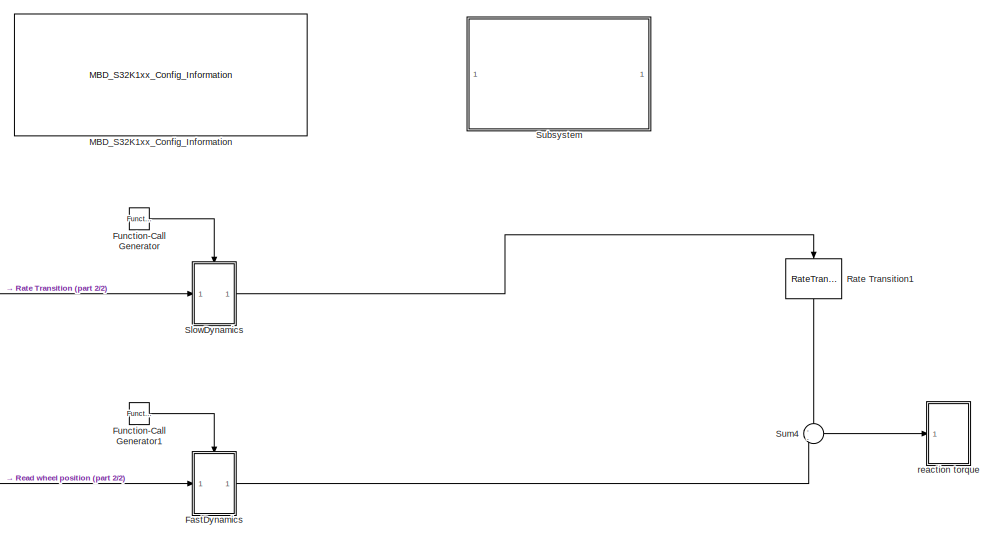
[diagram: root canvas - part 1/2, right side, full height]
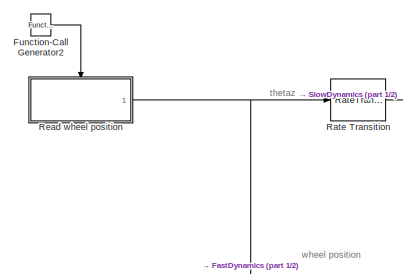
[diagram: root canvas - part 2/2, middle left region]
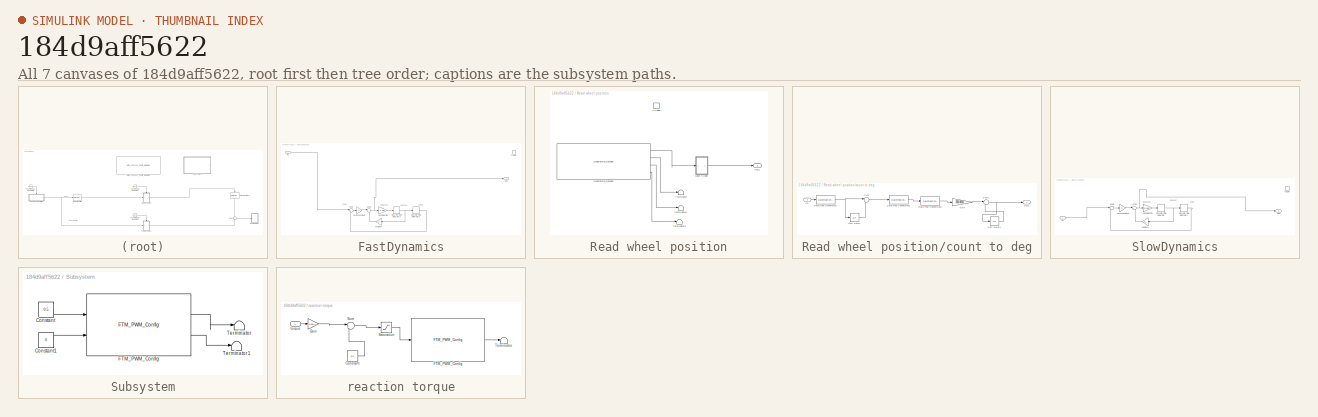
[diagram: thumbnail index - all 7 canvases of the model, root first then tree order]
MODEL slx_184d9aff5622
KIND model
CONFIG AbsTol = auto
CONFIG EnableMultiTasking = on
CONFIG FixedStep = .001
CONFIG InitFcn = mbd_s32k_consistency_checks(bdroot(gcs));
CONFIG MaxStep = auto
CONFIG MinStep = auto
CONFIG RelTol = 1e-3
CONFIG SampleTimeConstraint = Unconstrained
CONFIG Solver = FixedStepDiscrete
CONFIG SolverName = FixedStepDiscrete
CONFIG StartTime = 0.0
CONFIG StopTime = tfinal
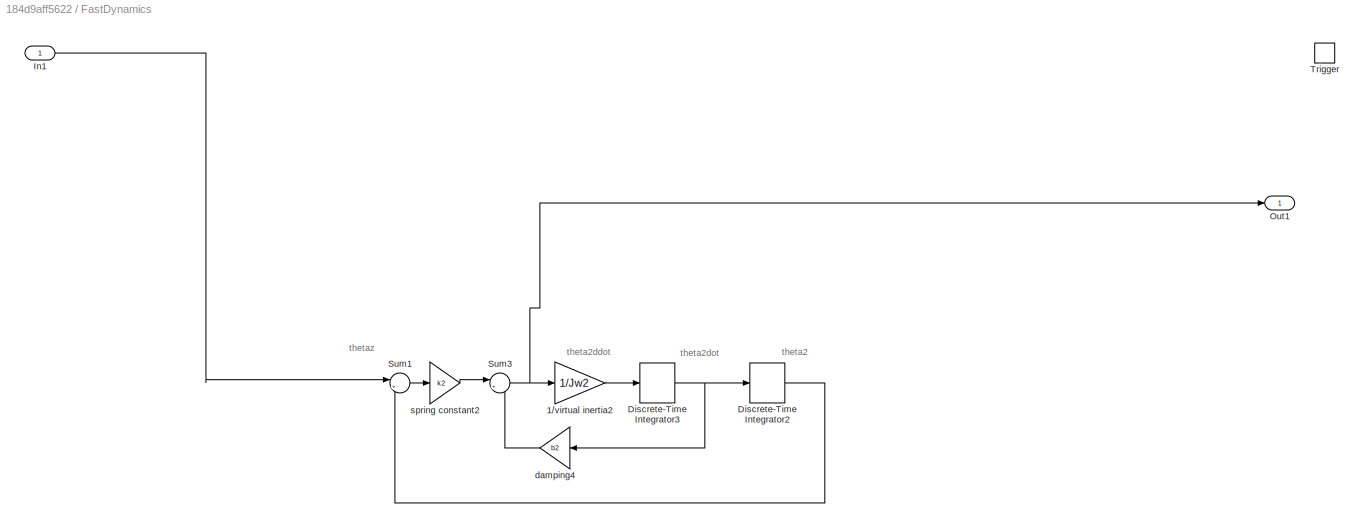
BLOCK [SubSystem] FastDynamics
  AttributesFormatString = %<TreatAsAtomicUnit>
  Ports = [1, 1, 0, 1]
  RTWFcnName = fast_dynamics
  RTWFcnNameOpts = User specified
  RTWFileNameOpts = Use function name
  RequestExecContextInheritance = off
  TreatAsAtomicUnit = on
BLOCK [Gain] FastDynamics/1//virtual inertia2
  Gain = 1/Jw2
  OutDataTypeStr = Inherit: Same as input
  ParamDataTypeStr = Inherit: Same as input
  SaturateOnIntegerOverflow = on
BLOCK [DiscreteIntegrator] FastDynamics/Discrete-Time Integrator2
  ICPrevOutput = DiscIntNeverNeededParam
  ICPrevScaledInput = DiscIntNeverNeededParam
  Ports = [1, 1]
  SampleTime = -1
BLOCK [DiscreteIntegrator] FastDynamics/Discrete-Time Integrator3
  ICPrevOutput = DiscIntNeverNeededParam
  ICPrevScaledInput = DiscIntNeverNeededParam
  Ports = [1, 1]
  SampleTime = -1
BLOCK [Inport] FastDynamics/In1
BLOCK [Outport] FastDynamics/Out1
BLOCK [Sum] FastDynamics/Sum1
  InputSameDT = on
  Inputs = |+-
  OutDataTypeStr = Inherit: Same as first input
  Ports = [2, 1]
  SaturateOnIntegerOverflow = on
BLOCK [Sum] FastDynamics/Sum3
  InputSameDT = on
  Inputs = |+-
  OutDataTypeStr = Inherit: Same as first input
  Ports = [2, 1]
  SaturateOnIntegerOverflow = on
BLOCK [TriggerPort] FastDynamics/Trigger
  PortDimensions = 1
  Ports = []
  StatesWhenEnabling = held
  TriggerType = function-call
  VariantControl = (inherit)
BLOCK [Gain] FastDynamics/damping4
  Gain = b2
  OutDataTypeStr = Inherit: Same as input
  ParamDataTypeStr = Inherit: Same as input
  SaturateOnIntegerOverflow = on
BLOCK [Gain] FastDynamics/spring constant2
  Gain = k2
  OutDataTypeStr = Inherit: Same as input
  ParamDataTypeStr = Inherit: Same as input
  SaturateOnIntegerOverflow = on
BLOCK [Reference] Function-Call Generator  REF=simulink/Ports &
Subsystems/Function-Call
Generator
  Ports = [0, 1]
  SourceBlock = simulink/Ports &\nSubsystems/Function-Call\nGenerator
  SourceProductBaseCode = SL
  SourceType = Function-Call Generator
BLOCK [Reference] Function-Call Generator1  REF=simulink/Ports &
Subsystems/Function-Call
Generator
  Ports = [0, 1]
  SourceBlock = simulink/Ports &\nSubsystems/Function-Call\nGenerator
  SourceProductBaseCode = SL
  SourceType = Function-Call Generator
BLOCK [Reference] Function-Call Generator2  REF=simulink/Ports &
Subsystems/Function-Call
Generator
  Ports = [0, 1]
  SourceBlock = simulink/Ports &\nSubsystems/Function-Call\nGenerator
  SourceProductBaseCode = SL
  SourceType = Function-Call Generator
BLOCK [Reference] MBD_S32K1xx_Config_Information  REF=mbd_s32k1xx_ec_toolbox/MBD_S32K1xx_Config_Information
  Ports = []
  SourceBlock = mbd_s32k1xx_ec_toolbox/MBD_S32K1xx_Config_Information
  SourceType = MBDTBX_EC_S32K
BLOCK [RateTransition] Rate Transition
BLOCK [RateTransition] Rate Transition1
  NameLocation = right
BLOCK [SubSystem] Read wheel position
  Ports = [0, 1, 0, 1]
  RequestExecContextInheritance = off
  TreatAsAtomicUnit = on
BLOCK [Outport] Read wheel position/Out1
BLOCK [Reference] Read wheel position/Quadrature_Decoder  REF=mbd_s32k1xx_ec_toolbox/Motor Control Blocks/FTM Blocks/Quadrature_Decoder
  Ports = [0, 4]
  Priority = 1
  SourceBlock = mbd_s32k1xx_ec_toolbox/Motor Control Blocks/FTM Blocks/Quadrature_Decoder
  SourceType = FTM_s32k_qd_block
BLOCK [Terminator] Read wheel position/Terminator
BLOCK [Terminator] Read wheel position/Terminator1
BLOCK [Terminator] Read wheel position/Terminator2
BLOCK [TriggerPort] Read wheel position/Trigger
  PortDimensions = 1
  Ports = []
  StatesWhenEnabling = held
  TriggerType = function-call
  VariantControl = (inherit)
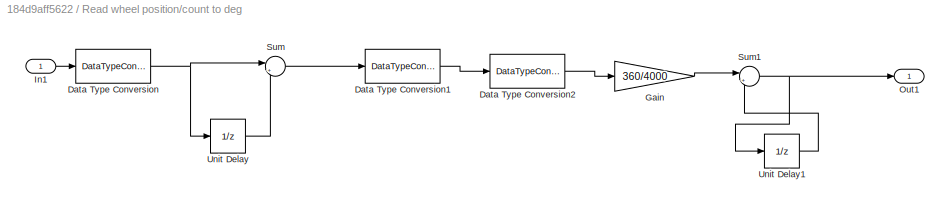
BLOCK [SubSystem] Read wheel position/count to deg
  Ports = [1, 1]
  RequestExecContextInheritance = off
BLOCK [DataTypeConversion] Read wheel position/count to deg/Data Type Conversion
  OutDataTypeStr = uint16
  RndMeth = Floor
  SaturateOnIntegerOverflow = off
BLOCK [DataTypeConversion] Read wheel position/count to deg/Data Type Conversion1
  OutDataTypeStr = int16
  RndMeth = Floor
  SaturateOnIntegerOverflow = off
BLOCK [DataTypeConversion] Read wheel position/count to deg/Data Type Conversion2
  OutDataTypeStr = single
  RndMeth = Floor
  SaturateOnIntegerOverflow = off
BLOCK [Gain] Read wheel position/count to deg/Gain
  Gain = 360/4000
BLOCK [Inport] Read wheel position/count to deg/In1
BLOCK [Outport] Read wheel position/count to deg/Out1
BLOCK [Sum] Read wheel position/count to deg/Sum
  Inputs = |+-
  Ports = [2, 1]
BLOCK [Sum] Read wheel position/count to deg/Sum1
  Inputs = |++
  Ports = [2, 1]
BLOCK [UnitDelay] Read wheel position/count to deg/Unit Delay
  HasFrameUpgradeWarning = on
  SampleTime = -1
BLOCK [UnitDelay] Read wheel position/count to deg/Unit Delay1
  HasFrameUpgradeWarning = on
  SampleTime = -1
BLOCK [SubSystem] SlowDynamics
  AttributesFormatString = %<TreatAsAtomicUnit>
  Ports = [1, 1, 0, 1]
  RTWFcnName = slow_dynamics
  RTWFcnNameOpts = User specified
  RTWFileNameOpts = Use function name
  RequestExecContextInheritance = off
  TreatAsAtomicUnit = on
BLOCK [Gain] SlowDynamics/1//virtual inertia1
  Gain = 1/Jw1
  OutDataTypeStr = Inherit: Same as input
  ParamDataTypeStr = Inherit: Same as input
  SaturateOnIntegerOverflow = on
BLOCK [DiscreteIntegrator] SlowDynamics/Discrete-Time Integrator
  ICPrevOutput = DiscIntNeverNeededParam
  ICPrevScaledInput = DiscIntNeverNeededParam
  Ports = [1, 1]
  SampleTime = -1
BLOCK [DiscreteIntegrator] SlowDynamics/Discrete-Time Integrator1
  ICPrevOutput = DiscIntNeverNeededParam
  ICPrevScaledInput = DiscIntNeverNeededParam
  Ports = [1, 1]
  SampleTime = -1
BLOCK [Inport] SlowDynamics/In1
BLOCK [Outport] SlowDynamics/Out1
BLOCK [Sum] SlowDynamics/Sum2
  InputSameDT = on
  Inputs = |+-
  OutDataTypeStr = Inherit: Same as first input
  Ports = [2, 1]
  SaturateOnIntegerOverflow = on
BLOCK [Sum] SlowDynamics/Sum5
  InputSameDT = on
  Inputs = |+-
  OutDataTypeStr = Inherit: Same as first input
  Ports = [2, 1]
  SaturateOnIntegerOverflow = on
BLOCK [TriggerPort] SlowDynamics/Trigger
  PortDimensions = 1
  Ports = []
  StatesWhenEnabling = held
  TriggerType = function-call
  VariantControl = (inherit)
BLOCK [Gain] SlowDynamics/damping1
  Gain = b1
  OutDataTypeStr = Inherit: Same as input
  ParamDataTypeStr = Inherit: Same as input
  SaturateOnIntegerOverflow = on
BLOCK [Gain] SlowDynamics/spring constant1
  Gain = k1
  OutDataTypeStr = Inherit: Same as input
  ParamDataTypeStr = Inherit: Same as input
  SaturateOnIntegerOverflow = on
BLOCK [SubSystem] Subsystem
  Ports = []
  RequestExecContextInheritance = off
BLOCK [Constant] Subsystem/Constant
  OutDataTypeStr = single
  Value = 0.5
BLOCK [Constant] Subsystem/Constant1
  OutDataTypeStr = single
  Value = 0
BLOCK [Reference] Subsystem/FTM_PWM_Config  REF=mbd_s32k1xx_ec_toolbox/Motor Control Blocks/FTM Blocks/FTM_PWM_Config
  Ports = [2, 2]
  SourceBlock = mbd_s32k1xx_ec_toolbox/Motor Control Blocks/FTM Blocks/FTM_PWM_Config
  SourceType = FTM_s32k_pwm_config_block
BLOCK [Terminator] Subsystem/Terminator
BLOCK [Terminator] Subsystem/Terminator1
BLOCK [Sum] Sum4
  InputSameDT = on
  Inputs = -|-
  OutDataTypeStr = Inherit: Same as first input
  Ports = [2, 1]
  SaturateOnIntegerOverflow = on
BLOCK [SubSystem] reaction torque
  Ports = [1]
  RequestExecContextInheritance = off
BLOCK [Constant] reaction torque/Constant
  OutDataTypeStr = single
  Value = 0.5
BLOCK [Reference] reaction torque/FTM_PWM_Config  REF=mbd_s32k1xx_ec_toolbox/Motor Control Blocks/FTM Blocks/FTM_PWM_Config
  Ports = [1, 1]
  SourceBlock = mbd_s32k1xx_ec_toolbox/Motor Control Blocks/FTM Blocks/FTM_PWM_Config
  SourceType = FTM_s32k_pwm_config_block
BLOCK [Gain] reaction torque/Gain
  Gain = 3.16e-4
BLOCK [Saturate] reaction torque/Saturation
  LowerLimit = 0.24
  UpperLimit = 0.76
BLOCK [Sum] reaction torque/Sum
  Inputs = |++
  OutDataTypeStr = single
  Ports = [2, 1]
BLOCK [Terminator] reaction torque/Terminator
BLOCK [Inport] reaction torque/torque
ANNOTATION (root): thetaz
ANNOTATION (root): wheel position
ANNOTATION FastDynamics: theta2
ANNOTATION FastDynamics: theta2ddot
ANNOTATION FastDynamics: theta2dot
ANNOTATION FastDynamics: thetaz
ANNOTATION SlowDynamics: theta1
ANNOTATION SlowDynamics: theta1ddot
ANNOTATION SlowDynamics: theta1dot
LINE FastDynamics/1//virtual inertia2:1 -> FastDynamics/Discrete-Time Integrator3:1
LINE FastDynamics/Discrete-Time Integrator2:1 -> FastDynamics/Sum1:2
NET FastDynamics/Discrete-Time Integrator3:1 -> FastDynamics/Discrete-Time Integrator2:1, FastDynamics/damping4:1
LINE FastDynamics/In1:1 -> FastDynamics/Sum1:1
LINE FastDynamics/Sum1:1 -> FastDynamics/spring constant2:1
NET FastDynamics/Sum3:1 -> FastDynamics/1//virtual inertia2:1, FastDynamics/Out1:1
LINE FastDynamics/damping4:1 -> FastDynamics/Sum3:2
LINE FastDynamics/spring constant2:1 -> FastDynamics/Sum3:1
LINE FastDynamics:1 -> Sum4:2
LINE Function-Call Generator1:1 -> FastDynamics:trigger
LINE Function-Call Generator2:1 -> Read wheel position:trigger
LINE Function-Call Generator:1 -> SlowDynamics:trigger
LINE Rate Transition1:1 -> Sum4:1
LINE Rate Transition:1 -> SlowDynamics:1
LINE Read wheel position/Quadrature_Decoder:1 -> Read wheel position/count to deg:1
LINE Read wheel position/Quadrature_Decoder:2 -> Read wheel position/Terminator:1
LINE Read wheel position/Quadrature_Decoder:3 -> Read wheel position/Terminator1:1
LINE Read wheel position/Quadrature_Decoder:4 -> Read wheel position/Terminator2:1
LINE Read wheel position/count to deg/Data Type Conversion1:1 -> Read wheel position/count to deg/Data Type Conversion2:1
LINE Read wheel position/count to deg/Data Type Conversion2:1 -> Read wheel position/count to deg/Gain:1
NET Read wheel position/count to deg/Data Type Conversion:1 -> Read wheel position/count to deg/Sum:1, Read wheel position/count to deg/Unit Delay:1
LINE Read wheel position/count to deg/Gain:1 -> Read wheel position/count to deg/Sum1:1
LINE Read wheel position/count to deg/In1:1 -> Read wheel position/count to deg/Data Type Conversion:1
NET Read wheel position/count to deg/Sum1:1 -> Read wheel position/count to deg/Out1:1, Read wheel position/count to deg/Unit Delay1:1
LINE Read wheel position/count to deg/Sum:1 -> Read wheel position/count to deg/Data Type Conversion1:1
LINE Read wheel position/count to deg/Unit Delay1:1 -> Read wheel position/count to deg/Sum1:2
LINE Read wheel position/count to deg/Unit Delay:1 -> Read wheel position/count to deg/Sum:2
LINE Read wheel position/count to deg:1 -> Read wheel position/Out1:1
NET Read wheel position:1 -> FastDynamics:1, Rate Transition:1
LINE SlowDynamics/1//virtual inertia1:1 -> SlowDynamics/Discrete-Time Integrator:1
LINE SlowDynamics/Discrete-Time Integrator1:1 -> SlowDynamics/Sum5:2
NET SlowDynamics/Discrete-Time Integrator:1 -> SlowDynamics/Discrete-Time Integrator1:1, SlowDynamics/damping1:1
LINE SlowDynamics/In1:1 -> SlowDynamics/Sum5:1
NET SlowDynamics/Sum2:1 -> SlowDynamics/1//virtual inertia1:1, SlowDynamics/Out1:1
LINE SlowDynamics/Sum5:1 -> SlowDynamics/spring constant1:1
LINE SlowDynamics/damping1:1 -> SlowDynamics/Sum2:2
LINE SlowDynamics/spring constant1:1 -> SlowDynamics/Sum2:1
LINE SlowDynamics:1 -> Rate Transition1:1
LINE Subsystem/Constant1:1 -> Subsystem/FTM_PWM_Config:2
LINE Subsystem/Constant:1 -> Subsystem/FTM_PWM_Config:1
LINE Subsystem/FTM_PWM_Config:1 -> Subsystem/Terminator:1
LINE Subsystem/FTM_PWM_Config:2 -> Subsystem/Terminator1:1
LINE Sum4:1 -> reaction torque:1
LINE reaction torque/Constant:1 -> reaction torque/Sum:2
LINE reaction torque/FTM_PWM_Config:1 -> reaction torque/Terminator:1
LINE reaction torque/Gain:1 -> reaction torque/Sum:1
LINE reaction torque/Saturation:1 -> reaction torque/FTM_PWM_Config:1
LINE reaction torque/Sum:1 -> reaction torque/Saturation:1
LINE reaction torque/torque:1 -> reaction torque/Gain:1
note: NET lines group one-source signal fan-out (src -> all destinations, sorted); 1:1 wires keep LINE
